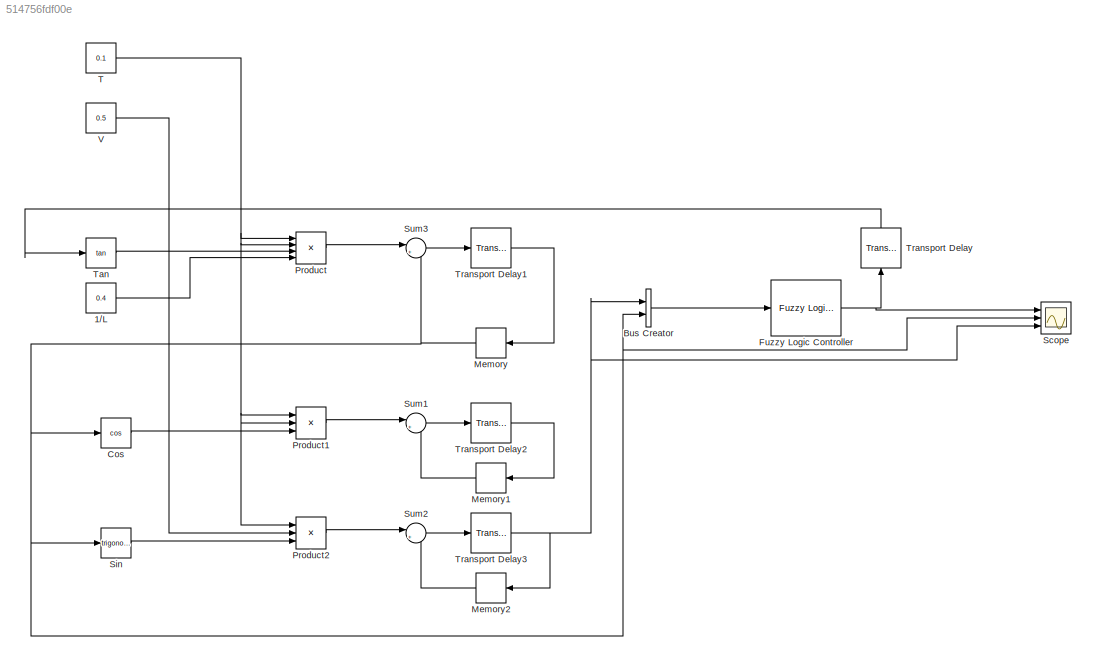
MODEL slx_514756fdf00e
KIND model
CONFIG AbsTol = auto
CONFIG EnableMultiTasking = off
CONFIG FixedStep = auto
CONFIG MaxStep = auto
CONFIG MinStep = auto
CONFIG RelTol = 1e-3
CONFIG SampleTimeConstraint = Unconstrained
CONFIG Solver = FixedStepAuto
CONFIG SolverName = FixedStepAuto
CONFIG StartTime = 0.0
CONFIG StopTime = 10
BLOCK [Constant]  V
  Value = 0.5
BLOCK [Constant] 1//L
  Value = 0.4
BLOCK [BusCreator] Bus Creator
  DisplayOption = bar
  InheritFromInputs = on
  Inputs = 2
  Ports = [2, 1]
BLOCK [Trigonometry] Cos
  Operator = cos
  Ports = [1, 1]
BLOCK [Reference] Fuzzy Logic Controller  REF=fuzblock/Fuzzy Logic   (lib defined in mdl_858b3b3e7478)
Controller
  Ports = [1, 1]
  SourceBlock = fuzblock/Fuzzy Logic \nController
  SourceProductBaseCode = FL
  SourceProductName = Fuzzy Logic Toolbox
  SourceType = Fuzzy Inference System
BLOCK [Memory] Memory
BLOCK [Memory] Memory1
  InitialCondition = 20
BLOCK [Memory] Memory2
  InitialCondition = 40
BLOCK [Product] Product
  InputSameDT = off
  Inputs = 4
  OutDataTypeStr = Inherit: Inherit via internal rule
  Ports = [4, 1]
  RndMeth = Floor
  SaturateOnIntegerOverflow = off
BLOCK [Product] Product1
  InputSameDT = off
  Inputs = 3
  OutDataTypeStr = Inherit: Inherit via internal rule
  Ports = [3, 1]
  RndMeth = Floor
  SaturateOnIntegerOverflow = off
BLOCK [Product] Product2
  InputSameDT = off
  Inputs = 3
  OutDataTypeStr = Inherit: Inherit via internal rule
  Ports = [3, 1]
  RndMeth = Floor
  SaturateOnIntegerOverflow = off
BLOCK [Scope] Scope
  Floating = off
  NumInputPorts = 3
  Ports = [3]
  ScopeSpecificationString = Simulink.scopes.TimeScopeBlockCfg('CurrentConfiguration', extmgr.ConfigurationSet(extmgr.Configuration('Core','General UI',true),extmgr.Configuration('Core','Source UI',true),extmgr.Configuration('Sources','WiredSimulink',true),extmgr.Configuration('Visuals','Time Domain',true,'SerializedDisplays',{struct('MinYLimReal','-0.00000000000000002','MaxYLimReal','0.00000000000000018','YLabelReal','','Min...<+1498ch>
BLOCK [Trigonometry] Sin
  Ports = [1, 1]
BLOCK [Sum] Sum1
  IconShape = round
  InputSameDT = off
  Inputs = |++
  OutDataTypeStr = Inherit: Inherit via internal rule
  Ports = [2, 1]
  SaturateOnIntegerOverflow = off
BLOCK [Sum] Sum2
  IconShape = round
  InputSameDT = off
  Inputs = |++
  OutDataTypeStr = Inherit: Inherit via internal rule
  Ports = [2, 1]
  SaturateOnIntegerOverflow = off
BLOCK [Sum] Sum3
  IconShape = round
  InputSameDT = off
  Inputs = |++
  OutDataTypeStr = Inherit: Inherit via internal rule
  Ports = [2, 1]
  SaturateOnIntegerOverflow = off
BLOCK [Constant] T
  Value = 0.1
BLOCK [Trigonometry] Tan
  Operator = tan
  Ports = [1, 1]
BLOCK [TransportDelay] Transport Delay
  Ports = [1, 1]
BLOCK [TransportDelay] Transport Delay1
  Ports = [1, 1]
BLOCK [TransportDelay] Transport Delay2
  Ports = [1, 1]
BLOCK [TransportDelay] Transport Delay3
  Ports = [1, 1]
LINE  V:1 -> Product2:2
LINE 1//L:1 -> Product:4
LINE Bus Creator:1 -> Fuzzy Logic Controller:1
LINE Cos:1 -> Product1:3
NET Fuzzy Logic Controller:1 -> Scope:1, Transport Delay:1
LINE Memory1:1 -> Sum1:2
LINE Memory2:1 -> Sum2:2
NET Memory:1 -> Bus Creator:2, Cos:1, Scope:2, Sin:1, Sum3:2
LINE Product1:1 -> Sum1:1
LINE Product2:1 -> Sum2:1
LINE Product:1 -> Sum3:1
LINE Sin:1 -> Product2:3
LINE Sum1:1 -> Transport Delay2:1
LINE Sum2:1 -> Transport Delay3:1
LINE Sum3:1 -> Transport Delay1:1
NET T:1 -> Product1:1, Product1:2, Product2:1, Product:1, Product:2
LINE Tan:1 -> Product:3
LINE Transport Delay1:1 -> Memory:1
LINE Transport Delay2:1 -> Memory1:1
NET Transport Delay3:1 -> Bus Creator:1, Memory2:1, Scope:3
LINE Transport Delay:1 -> Tan:1
note: NET lines group one-source signal fan-out (src -> all destinations, sorted); 1:1 wires keep LINE
